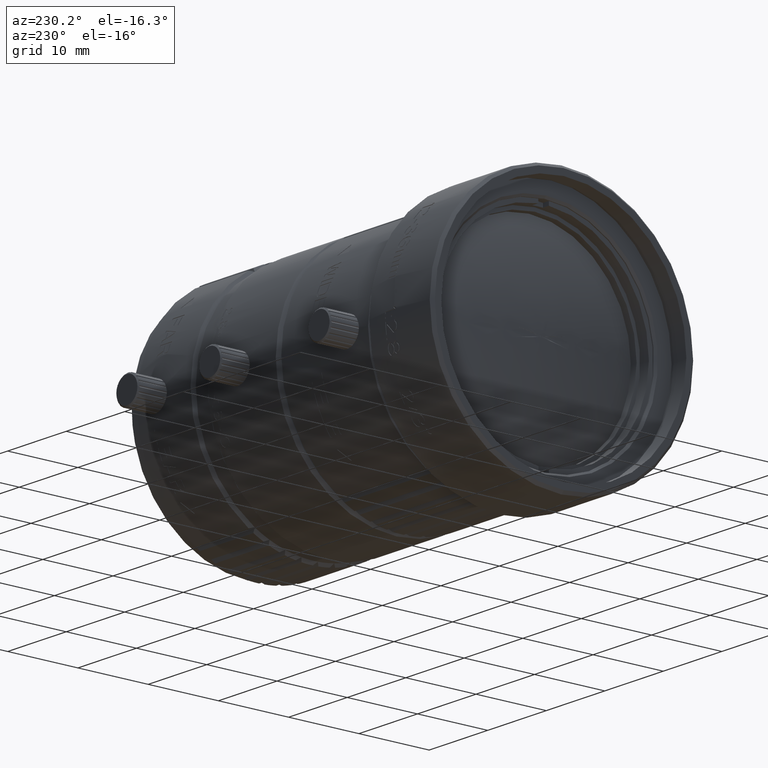
[diagram: clean part render]
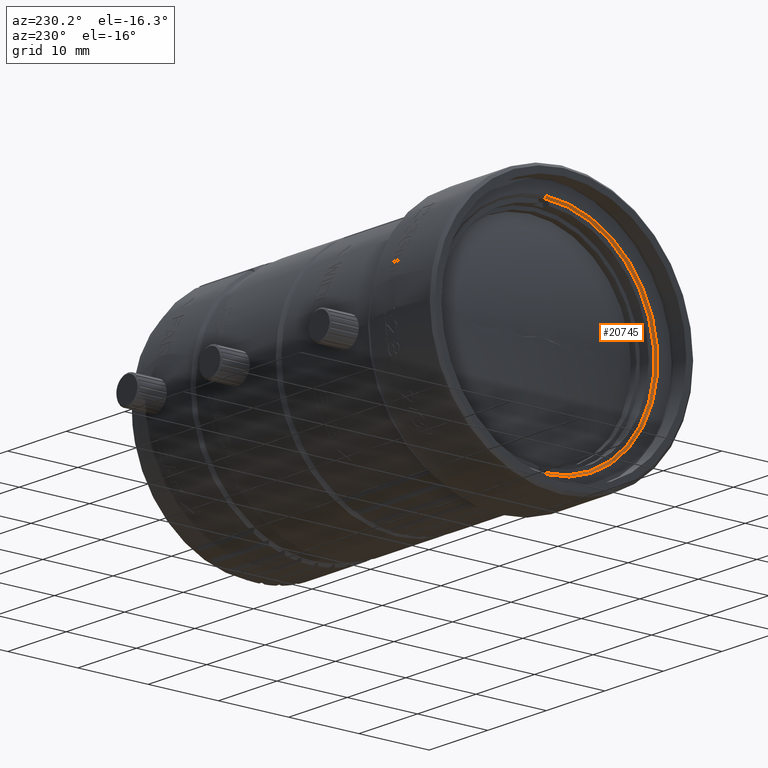
[diagram: same view with one face highlighted and labeled with its STEP entity id]
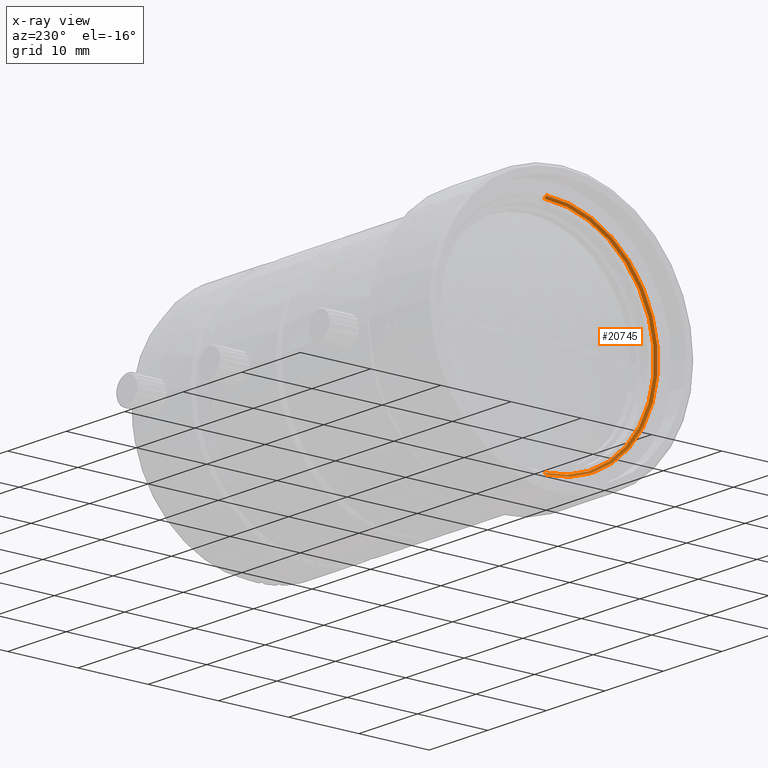
[diagram: x-ray of the same camera — body ghosted, the highlighted face saturated]
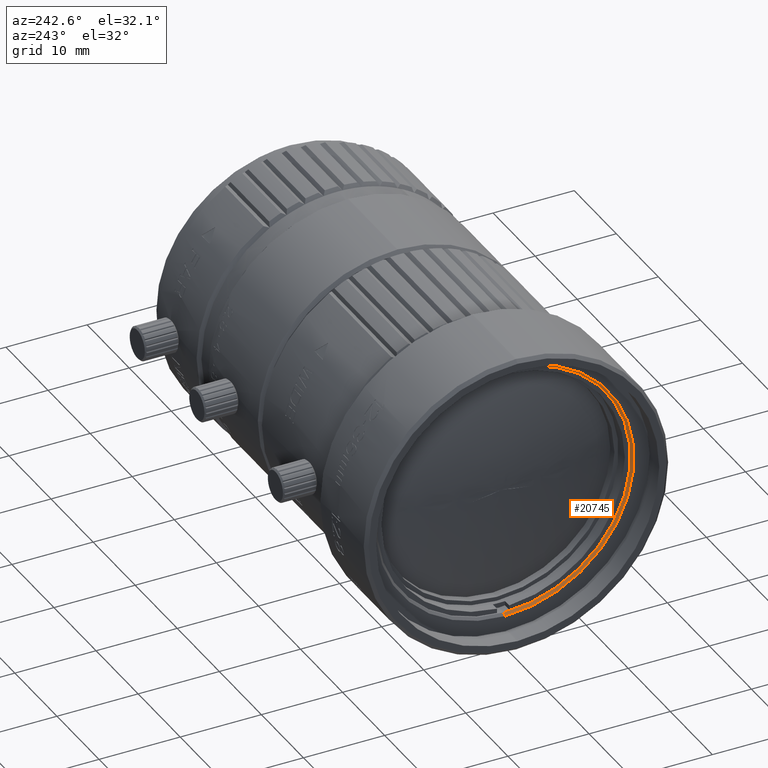
[diagram: same view with one face highlighted and labeled with its STEP entity id]
A machine part, auxiliary view. The second image highlights one B-rep face of the part: STEP entity #20745.
The next image is the same camera in x-ray: the body ghosted, the highlighted face saturated — about 0% of this face is hidden behind the body in this view.
A second angle (auxiliary view) of the same face is appended — the face is thin or edge-on in the first view.
In plain terms, the highlighted conical surface has half-angle 45 deg.
Its self-contained STEP definition (entity closure, byte-faithful):
#6187 = CARTESIAN_POINT ( 'NONE',  ( 0.3000016956867854745, 0.000000000000000000, 1.216804434989000165E-13 ) ) ;
#6734 = CIRCLE ( 'NONE', #15623, 15.90000345586704888 ) ;
#9741 = ORIENTED_EDGE ( 'NONE', *, *, #16314, .T. ) ;
#10767 = VERTEX_POINT ( 'NONE', #55066 ) ;
#15623 = AXIS2_PLACEMENT_3D ( 'NONE', #24559, #55869, #24899 ) ;
#16314 = EDGE_CURVE ( 'NONE', #50682, #63484, #47738, .T. ) ;
#17335 = DIRECTION ( 'NONE',  ( 1.000000000000000000, 0.000000000000000000, -2.432504609868839924E-17 ) ) ;
#18627 = DIRECTION ( 'NONE',  ( -0.7071067043439687172, 8.659561503405006443E-17, -0.7071068580291178796 ) ) ;
#19731 = CARTESIAN_POINT ( 'NONE',  ( 0.3000016956867854745, 1.910449214244645030E-15, -15.60000169497664935 ) ) ;
#20383 = DIRECTION ( 'NONE',  ( 0.000000000000000000, 0.000000000000000000, 1.000000000000000000 ) ) ;
#20745 = ADVANCED_FACE ( 'NONE', ( #46144 ), #40091, .F. ) ;
#20984 = ORIENTED_EDGE ( 'NONE', *, *, #24430, .T. ) ;
#23189 = EDGE_LOOP ( 'NONE', ( #9741, #20984, #45661, #52839 ) ) ;
#24430 = EDGE_CURVE ( 'NONE', #63484, #10767, #28075, .T. ) ;
#24559 = CARTESIAN_POINT ( 'NONE',  ( 0.000000000000000000, 6.394884621841000123E-14, 7.025630077706069995E-14 ) ) ;
#24899 = DIRECTION ( 'NONE',  ( 0.000000000000000000, -3.552713678800500140E-15, -1.000000000000000000 ) ) ;
#27966 = DIRECTION ( 'NONE',  ( -0.7071067043439687172, 0.000000000000000000, 0.7071068580291178796 ) ) ;
#28075 = LINE ( 'NONE', #49289, #34828 ) ;
#28409 = VERTEX_POINT ( 'NONE', #40535 ) ;
#30690 = CARTESIAN_POINT ( 'NONE',  ( 0.3000016956867854745, 0.000000000000000000, 15.60000169497690159 ) ) ;
#34828 = VECTOR ( 'NONE', #18627, 1000.000000000000000 ) ;
#38390 = CARTESIAN_POINT ( 'NONE',  ( 0.3000016956867839757, 0.000000000000000000, 15.60000169497690159 ) ) ;
#38995 = AXIS2_PLACEMENT_3D ( 'NONE', #68104, #46488, #20383 ) ;
#40091 = CONICAL_SURFACE ( 'NONE', #38995, 15.60000169497675060, 0.7853982720692593844 ) ;
#40535 = CARTESIAN_POINT ( 'NONE',  ( 0.000000000000000000, 0.000000000000000000, 15.90000345586714836 ) ) ;
#41084 = AXIS2_PLACEMENT_3D ( 'NONE', #6187, #17335, #65052 ) ;
#41591 = VECTOR ( 'NONE', #27966, 1000.000000000000000 ) ;
#43616 = LINE ( 'NONE', #38390, #41591 ) ;
#45661 = ORIENTED_EDGE ( 'NONE', *, *, #63811, .T. ) ;
#46144 = FACE_OUTER_BOUND ( 'NONE', #23189, .T. ) ;
#46488 = DIRECTION ( 'NONE',  ( -1.000000000000000000, 0.000000000000000000, 0.000000000000000000 ) ) ;
#47738 = CIRCLE ( 'NONE', #41084, 15.60000169497675060 ) ;
#49289 = CARTESIAN_POINT ( 'NONE',  ( 0.3000016956867839757, 1.910449214244660018E-15, -15.60000169497664935 ) ) ;
#50682 = VERTEX_POINT ( 'NONE', #30690 ) ;
#51258 = EDGE_CURVE ( 'NONE', #50682, #28409, #43616, .T. ) ;
#52839 = ORIENTED_EDGE ( 'NONE', *, *, #51258, .F. ) ;
#55066 = CARTESIAN_POINT ( 'NONE',  ( 0.000000000000000000, 1.947188833865949938E-15, -15.90000345586689967 ) ) ;
#55869 = DIRECTION ( 'NONE',  ( -1.000000000000000000, 0.000000000000000000, 0.000000000000000000 ) ) ;
#63484 = VERTEX_POINT ( 'NONE', #19731 ) ;
#63811 = EDGE_CURVE ( 'NONE', #10767, #28409, #6734, .T. ) ;
#65052 = DIRECTION ( 'NONE',  ( -2.432504609868839616E-17, 0.000000000000000000, -1.000000000000000000 ) ) ;
#68104 = CARTESIAN_POINT ( 'NONE',  ( 0.3000016956867839757, 0.000000000000000000, 1.214306433183763704E-13 ) ) ;